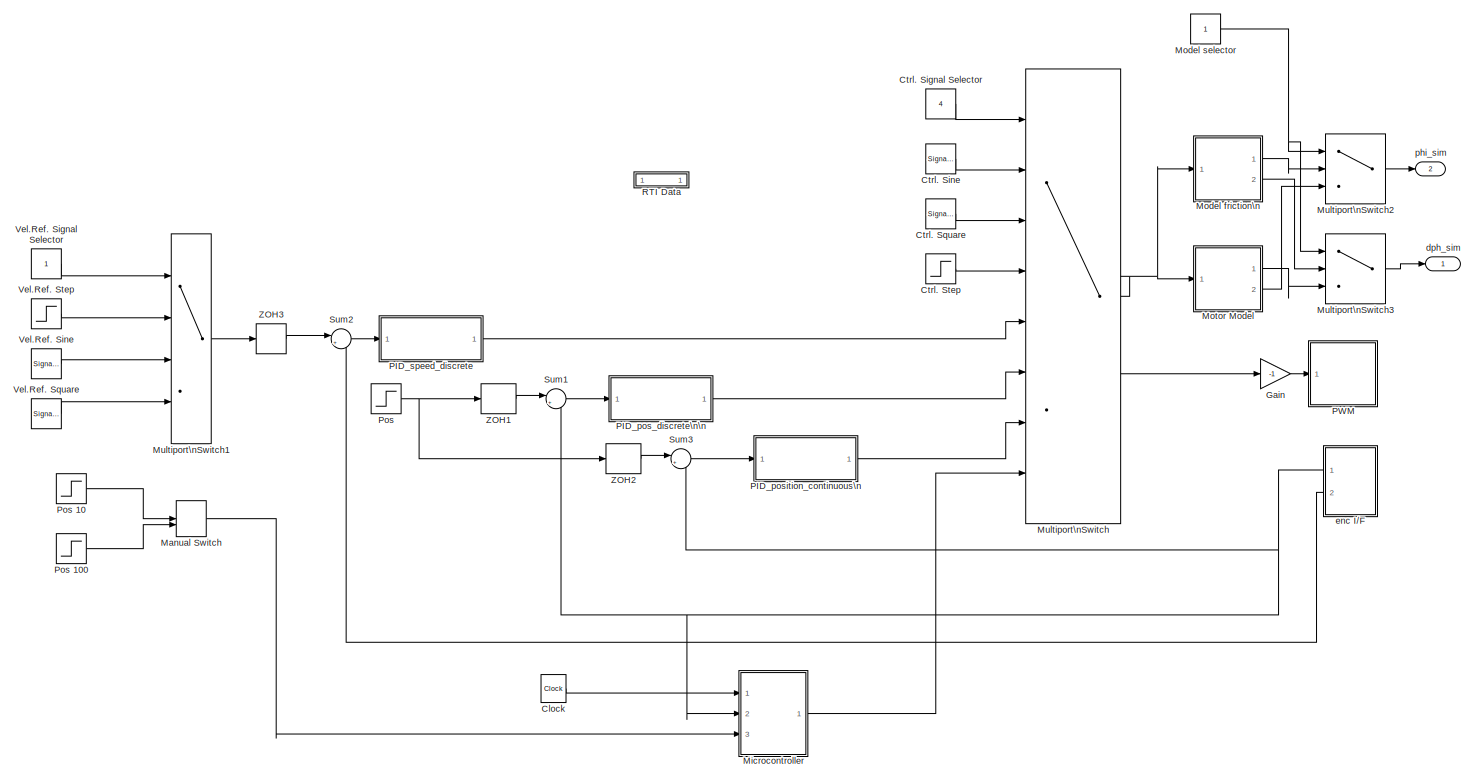
[diagram: root canvas - part 1/1, most of the canvas]
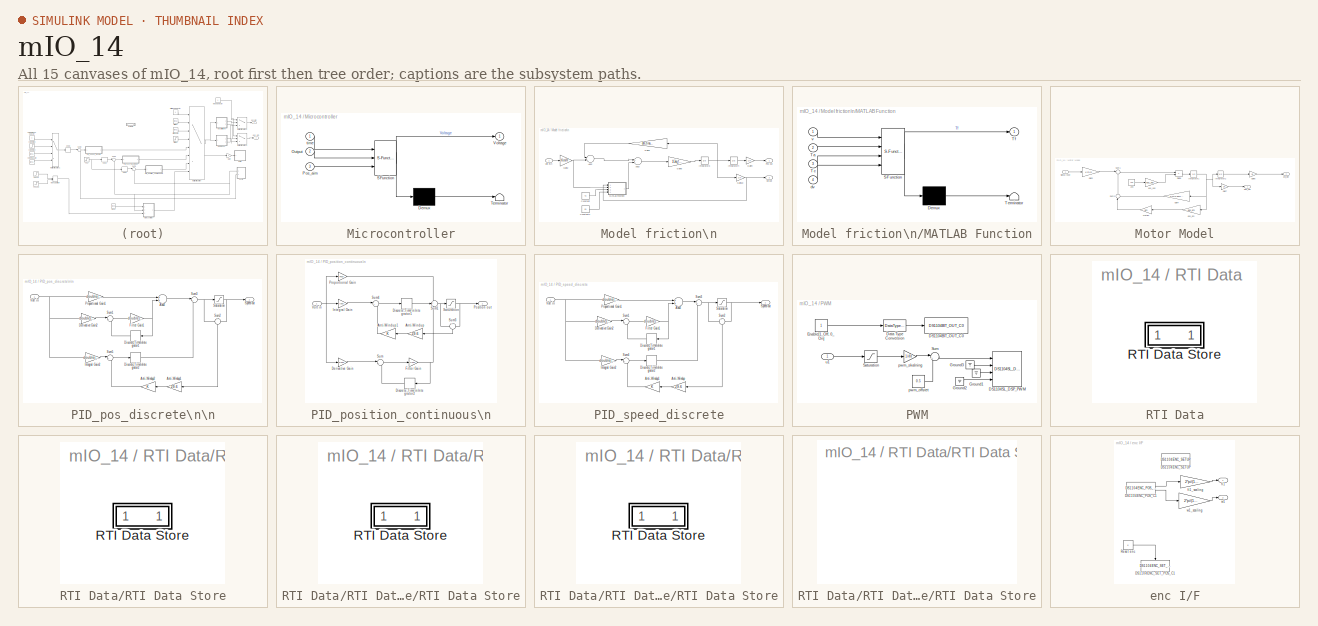
[diagram: thumbnail index - all 15 canvases of the model, root first then tree order]
MODEL mIO_14
KIND model
CONFIG InitFcn = param
CONFIG PostLoadFcn = , if any(exist('dsrtsu_mdlpostloadfcn', 'file') == [2, 3, 6]), try dsrtsu_mdlpostloadfcn('Execute', bdroot); catch fprintf('Error in PostLoadFcn (dsrtsu_mdlpostloadfcn) for model \"%s\":\\n %s\\n', bdroot, lasterr); end, end, \n
BLOCK [Clock] Clock
  Decimation = 1
  DisplayTime = on
  SID = 780
BLOCK [Constant] Ctrl. Signal Selector
  SID = 486
  Value = 4
BLOCK [SignalGenerator] Ctrl. Sine
  Amplitude = 24
  Frequency = 2*pi*2/10
  Ports = [0, 1]
  SID = 487
  Units = rad/sec
BLOCK [SignalGenerator] Ctrl. Square
  Amplitude = 24
  Frequency = 2*pi*2/10
  Ports = [0, 1]
  SID = 488
  Units = rad/sec
  WaveForm = square
BLOCK [Step] Ctrl. Step
  After = 24
  SID = 489
  SampleTime = 0
  Time = 0
BLOCK [Gain] Gain
  Gain = -1
  OutDataTypeStr = Inherit: Inherit via internal rule
  ParamDataTypeStr = Inherit: Inherit via internal rule
  SID = 404
  SaturateOnIntegerOverflow = off
BLOCK [ManualSwitch] Manual Switch
  SID = 777
BLOCK [SubSystem] Microcontroller
  ErrorFcn = Stateflow.Translate.translate
  PermitHierarchicalResolution = ParametersOnly
  Ports = [3, 1]
  RequestExecContextInheritance = off
  SFBlockType = MATLAB Function
  SID = 761
  SystemSampleTime = Ts
  TreatAsAtomicUnit = on
  Variant = off
BLOCK [Demux] Microcontroller/ Demux 
  Outputs = 1
  Ports = [1, 1]
  SID = 761::27
BLOCK [S-Function] Microcontroller/ SFunction 
  EnableBusSupport = on
  FunctionName = sf_sfun
  PortCounts = [3 2]
  Ports = [3, 2]
  SFunctionDeploymentMode = off
  SID = 761::26
  Tag = Stateflow S-Function mIO_14 1
BLOCK [Terminator] Microcontroller/ Terminator 
  SID = 761::28
BLOCK [Inport] Microcontroller/Output
  IconDisplay = Port number
  Port = 2
  SID = 761::1
BLOCK [Inport] Microcontroller/Pos_aim
  IconDisplay = Port number
  Port = 3
  SID = 761::19
BLOCK [Outport] Microcontroller/Voltage
  IconDisplay = Port number
  SID = 761::5
BLOCK [Inport] Microcontroller/time
  IconDisplay = Port number
  SID = 761::29
BLOCK [SubSystem] Model friction\n
  Ports = [1, 2]
  RequestExecContextInheritance = off
  SID = 716
  Variant = off
BLOCK [Sum] Model friction\n/Add2
  InputSameDT = off
  Inputs = -+
  OutDataTypeStr = Inherit: Inherit via internal rule
  Ports = [2, 1]
  SID = 718
  SaturateOnIntegerOverflow = off
BLOCK [Sum] Model friction\n/Add3
  InputSameDT = off
  Inputs = +-
  OutDataTypeStr = Inherit: Inherit via internal rule
  Ports = [2, 1]
  SID = 719
  SaturateOnIntegerOverflow = off
BLOCK [Constant] Model friction\n/Constant
  SID = 748
  Value = Tc
BLOCK [Constant] Model friction\n/Constant1
  SID = 749
  Value = dv
BLOCK [Gain] Model friction\n/Gain10
  Gain = 1/n
  OutDataTypeStr = Inherit: Inherit via internal rule
  ParamDataTypeStr = Inherit: Inherit via internal rule
  SID = 720
  SaturateOnIntegerOverflow = off
BLOCK [Gain] Model friction\n/Gain2
  Gain = Km/R
  OutDataTypeStr = Inherit: Inherit via internal rule
  ParamDataTypeStr = Inherit: Inherit via internal rule
  SID = 721
  SaturateOnIntegerOverflow = off
BLOCK [Gain] Model friction\n/Gain3
  Gain = dm_final+ Km*Kemf/R
  OutDataTypeStr = Inherit: Inherit via internal rule
  ParamDataTypeStr = Inherit: Inherit via internal rule
  SID = 722
  SaturateOnIntegerOverflow = off
BLOCK [Gain] Model friction\n/Gain5
  Gain = 1/Jeq_final
  OutDataTypeStr = Inherit: Inherit via internal rule
  ParamDataTypeStr = Inherit: Inherit via internal rule
  SID = 723
  SaturateOnIntegerOverflow = off
BLOCK [Gain] Model friction\n/Gain9
  Gain = 1/n
  OutDataTypeStr = Inherit: Inherit via internal rule
  ParamDataTypeStr = Inherit: Inherit via internal rule
  SID = 724
  SaturateOnIntegerOverflow = off
BLOCK [Integrator] Model friction\n/Integrator3
  Ports = [1, 1]
  SID = 725
BLOCK [Integrator] Model friction\n/Integrator4
  Ports = [1, 1]
  SID = 726
BLOCK [SubSystem] Model friction\n/MATLAB Function
  ErrorFcn = Stateflow.Translate.translate
  PermitHierarchicalResolution = ParametersOnly
  Ports = [4, 1]
  RequestExecContextInheritance = off
  SFBlockType = MATLAB Function
  SID = 727
  TreatAsAtomicUnit = on
  Variant = off
BLOCK [Demux] Model friction\n/MATLAB Function/ Demux 
  Outputs = 1
  Ports = [1, 1]
  SID = 727::23
BLOCK [S-Function] Model friction\n/MATLAB Function/ SFunction 
  EnableBusSupport = off
  FunctionName = sf_sfun
  PortCounts = [4 2]
  Ports = [4, 2]
  SFunctionDeploymentMode = off
  SID = 727::22
  Tag = Stateflow S-Function mIO_14 3
BLOCK [Terminator] Model friction\n/MATLAB Function/ Terminator 
  SID = 727::24
BLOCK [Inport] Model friction\n/MATLAB Function/Ta
  IconDisplay = Port number
  Port = 2
  SID = 727::19
BLOCK [Inport] Model friction\n/MATLAB Function/Tc
  IconDisplay = Port number
  Port = 3
  SID = 727::20
BLOCK [Outport] Model friction\n/MATLAB Function/Tf
  IconDisplay = Port number
  SID = 727::5
BLOCK [Inport] Model friction\n/MATLAB Function/dv
  IconDisplay = Port number
  Port = 4
  SID = 727::21
BLOCK [Inport] Model friction\n/MATLAB Function/v
  IconDisplay = Port number
  SID = 727::1
BLOCK [Outport] Model friction\n/Pos out
  IconDisplay = Port number
  SID = 728
BLOCK [Outport] Model friction\n/Vel out
  IconDisplay = Port number
  Port = 2
  SID = 733
BLOCK [Inport] Model friction\n/Volt in\n
  IconDisplay = Port number
  SID = 717
BLOCK [Constant] Model selector
  SID = 756
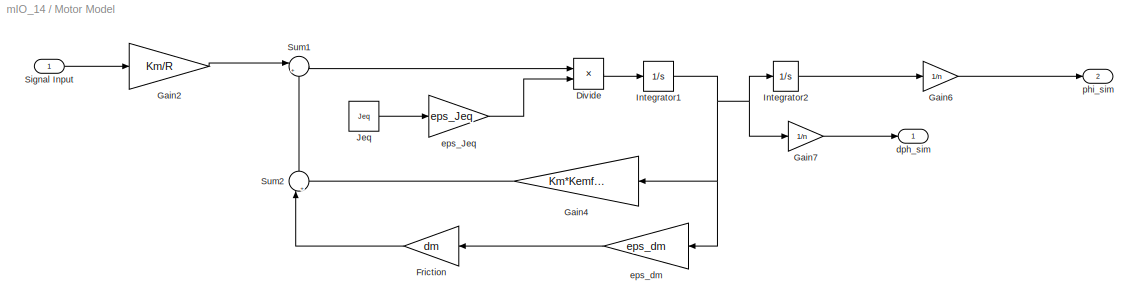
BLOCK [SubSystem] Motor Model
  Ports = [1, 2]
  RequestExecContextInheritance = off
  SID = 405
  Variant = off
BLOCK [Product] Motor Model/Divide
  InputSameDT = off
  Inputs = */
  OutDataTypeStr = Inherit: Inherit via internal rule
  Ports = [2, 1]
  RndMeth = Floor
  SID = 407
  SaturateOnIntegerOverflow = off
BLOCK [Gain] Motor Model/Friction
  Gain = dm
  OutDataTypeStr = Inherit: Inherit via internal rule
  ParamDataTypeStr = Inherit: Inherit via internal rule
  SID = 408
  SaturateOnIntegerOverflow = off
BLOCK [Gain] Motor Model/Gain2
  Gain = Km/R
  OutDataTypeStr = Inherit: Inherit via internal rule
  ParamDataTypeStr = Inherit: Inherit via internal rule
  SID = 409
  SaturateOnIntegerOverflow = off
BLOCK [Gain] Motor Model/Gain4
  Gain = Km*Kemf/(R)
  OutDataTypeStr = Inherit: Inherit via internal rule
  ParamDataTypeStr = Inherit: Inherit via internal rule
  SID = 410
  SaturateOnIntegerOverflow = off
BLOCK [Gain] Motor Model/Gain6
  Gain = 1/n
  OutDataTypeStr = Inherit: Inherit via internal rule
  ParamDataTypeStr = Inherit: Inherit via internal rule
  SID = 411
  SaturateOnIntegerOverflow = off
BLOCK [Gain] Motor Model/Gain7
  Gain = 1/n
  OutDataTypeStr = Inherit: Inherit via internal rule
  ParamDataTypeStr = Inherit: Inherit via internal rule
  SID = 412
  SaturateOnIntegerOverflow = off
BLOCK [Integrator] Motor Model/Integrator1
  Ports = [1, 1]
  SID = 413
BLOCK [Integrator] Motor Model/Integrator2
  Ports = [1, 1]
  SID = 414
BLOCK [Constant] Motor Model/Jeq
  SID = 415
  Value = Jeq
BLOCK [Inport] Motor Model/Signal Input
  IconDisplay = Port number
  SID = 406
BLOCK [Sum] Motor Model/Sum1
  IconShape = round
  InputSameDT = off
  Inputs = |+-
  OutDataTypeStr = Inherit: Inherit via internal rule
  Ports = [2, 1]
  SID = 416
  SaturateOnIntegerOverflow = off
BLOCK [Sum] Motor Model/Sum2
  IconShape = round
  InputSameDT = off
  Inputs = |++
  OutDataTypeStr = Inherit: Inherit via internal rule
  Ports = [2, 1]
  SID = 417
  SaturateOnIntegerOverflow = off
BLOCK [Outport] Motor Model/dph_sim
  IconDisplay = Port number
  SID = 420
BLOCK [Gain] Motor Model/eps_Jeq
  Gain = eps_Jeq
  OutDataTypeStr = Inherit: Inherit via internal rule
  ParamDataTypeStr = Inherit: Inherit via internal rule
  SID = 418
  SaturateOnIntegerOverflow = off
BLOCK [Gain] Motor Model/eps_dm
  Gain = eps_dm
  OutDataTypeStr = Inherit: Inherit via internal rule
  ParamDataTypeStr = Inherit: Inherit via internal rule
  SID = 419
  SaturateOnIntegerOverflow = off
BLOCK [Outport] Motor Model/phi_sim
  IconDisplay = Port number
  Port = 2
  SID = 421
BLOCK [MultiPortSwitch] Multiport\nSwitch
  InputSameDT = off
  Inputs = 7
  Ports = [8, 1]
  SID = 422
  SaturateOnIntegerOverflow = off
BLOCK [MultiPortSwitch] Multiport\nSwitch1
  InputSameDT = off
  Ports = [4, 1]
  SID = 522
  SaturateOnIntegerOverflow = off
BLOCK [MultiPortSwitch] Multiport\nSwitch2
  InputSameDT = off
  Inputs = 2
  Ports = [3, 1]
  SID = 754
  SaturateOnIntegerOverflow = off
BLOCK [MultiPortSwitch] Multiport\nSwitch3
  InputSameDT = off
  Inputs = 2
  Ports = [3, 1]
  SID = 755
  SaturateOnIntegerOverflow = off
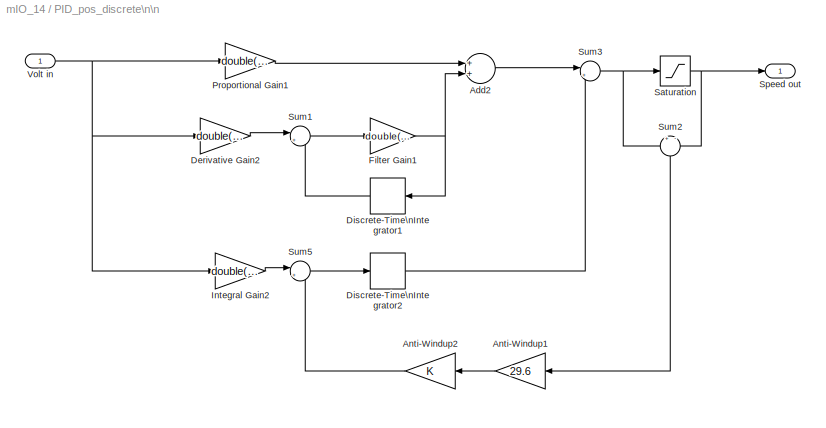
BLOCK [SubSystem] PID_pos_discrete\n\n
  Ports = [1, 1]
  RequestExecContextInheritance = off
  SID = 423
  Variant = off
BLOCK [Sum] PID_pos_discrete\n\n/Add2
  InputSameDT = off
  OutDataTypeStr = Inherit: Inherit via internal rule
  Ports = [2, 1]
  SID = 425
  SaturateOnIntegerOverflow = off
BLOCK [Gain] PID_pos_discrete\n\n/Anti-Windup1
  Gain = 29.6
  OutDataTypeStr = Inherit: Inherit via internal rule
  ParamDataTypeStr = Inherit: Inherit via internal rule
  SID = 614
  SaturateOnIntegerOverflow = off
BLOCK [Gain] PID_pos_discrete\n\n/Anti-Windup2
  OutDataTypeStr = Inherit: Inherit via internal rule
  ParamDataTypeStr = Inherit: Inherit via internal rule
  SID = 615
  SaturateOnIntegerOverflow = off
BLOCK [Gain] PID_pos_discrete\n\n/Derivative Gain2
  Gain = double(Dpos_d)
  OutDataTypeStr = Inherit: Inherit via internal rule
  ParamDataTypeStr = Inherit: Inherit via internal rule
  SID = 426
  SaturateOnIntegerOverflow = off
BLOCK [DiscreteIntegrator] PID_pos_discrete\n\n/Discrete-Time\nIntegrator1
  ICPrevOutput = DiscIntNeverNeededParam
  ICPrevScaledInput = DiscIntNeverNeededParam
  InitialConditionSetting = State (most efficient)
  Ports = [1, 1]
  SID = 427
  SampleTime = Ts
BLOCK [DiscreteIntegrator] PID_pos_discrete\n\n/Discrete-Time\nIntegrator2
  ICPrevOutput = DiscIntNeverNeededParam
  ICPrevScaledInput = DiscIntNeverNeededParam
  InitialConditionSetting = State (most efficient)
  Ports = [1, 1]
  SID = 428
  SampleTime = Ts
BLOCK [Gain] PID_pos_discrete\n\n/Filter Gain1
  Gain = double(Npos_d)
  OutDataTypeStr = Inherit: Inherit via internal rule
  ParamDataTypeStr = Inherit: Inherit via internal rule
  SID = 429
  SaturateOnIntegerOverflow = off
BLOCK [Gain] PID_pos_discrete\n\n/Integral Gain2
  Gain = double(Ipos_d)
  OutDataTypeStr = Inherit: Inherit via internal rule
  ParamDataTypeStr = Inherit: Inherit via internal rule
  SID = 430
  SaturateOnIntegerOverflow = off
BLOCK [Gain] PID_pos_discrete\n\n/Proportional Gain1
  Gain = double(Ppos_d)
  OutDataTypeStr = Inherit: Inherit via internal rule
  ParamDataTypeStr = Inherit: Inherit via internal rule
  SID = 431
  SaturateOnIntegerOverflow = off
BLOCK [Saturate] PID_pos_discrete\n\n/Saturation
  InputPortMap = u0
  LowerLimit = -24
  Ports = [1, 1]
  SID = 432
  UpperLimit = 24
BLOCK [Outport] PID_pos_discrete\n\n/Speed out
  IconDisplay = Port number
  SID = 435
BLOCK [Sum] PID_pos_discrete\n\n/Sum1
  IconShape = round
  InputSameDT = off
  Inputs = |+-
  OutDataTypeStr = Inherit: Inherit via internal rule
  Ports = [2, 1]
  SID = 433
  SaturateOnIntegerOverflow = off
BLOCK [Sum] PID_pos_discrete\n\n/Sum2
  IconShape = round
  InputSameDT = off
  Inputs = +|-
  OutDataTypeStr = Inherit: Inherit via internal rule
  Ports = [2, 1]
  SID = 619
  SaturateOnIntegerOverflow = off
BLOCK [Sum] PID_pos_discrete\n\n/Sum3
  IconShape = round
  InputSameDT = off
  Inputs = |++
  OutDataTypeStr = Inherit: Inherit via internal rule
  Ports = [2, 1]
  SID = 434
  SaturateOnIntegerOverflow = off
BLOCK [Sum] PID_pos_discrete\n\n/Sum5
  IconShape = round
  InputSameDT = off
  Inputs = |+-
  OutDataTypeStr = Inherit: Inherit via internal rule
  Ports = [2, 1]
  SID = 621
  SaturateOnIntegerOverflow = off
BLOCK [Inport] PID_pos_discrete\n\n/Volt in
  IconDisplay = Port number
  SID = 424
BLOCK [SubSystem] PID_position_continuous\n
  Ports = [1, 1]
  RequestExecContextInheritance = off
  SID = 436
  Variant = off
BLOCK [Gain] PID_position_continuous\n/Anti-Windup
  Gain = 29.6
  OutDataTypeStr = Inherit: Inherit via internal rule
  ParamDataTypeStr = Inherit: Inherit via internal rule
  SID = 626
  SaturateOnIntegerOverflow = off
BLOCK [Gain] PID_position_continuous\n/Anti-Windup1
  OutDataTypeStr = Inherit: Inherit via internal rule
  ParamDataTypeStr = Inherit: Inherit via internal rule
  SID = 627
  SaturateOnIntegerOverflow = off
BLOCK [Gain] PID_position_continuous\n/Derivative Gain
  Gain = Dpos
  OutDataTypeStr = Inherit: Inherit via internal rule
  ParamDataTypeStr = Inherit: Inherit via internal rule
  SID = 438
  SaturateOnIntegerOverflow = off
BLOCK [DiscreteIntegrator] PID_position_continuous\n/Discrete-Time\nIntegrator1
  ICPrevOutput = DiscIntNeverNeededParam
  ICPrevScaledInput = DiscIntNeverNeededParam
  InitialConditionSetting = State (most efficient)
  Ports = [1, 1]
  SID = 704
  SampleTime = Ts
BLOCK [DiscreteIntegrator] PID_position_continuous\n/Discrete-Time\nIntegrator2
  ICPrevOutput = DiscIntNeverNeededParam
  ICPrevScaledInput = DiscIntNeverNeededParam
  InitialConditionSetting = State (most efficient)
  Ports = [1, 1]
  SID = 705
  SampleTime = Ts
BLOCK [Gain] PID_position_continuous\n/Filter Gain
  Gain = Npos
  OutDataTypeStr = Inherit: Inherit via internal rule
  ParamDataTypeStr = Inherit: Inherit via internal rule
  SID = 439
  SaturateOnIntegerOverflow = off
BLOCK [Gain] PID_position_continuous\n/Integral Gain
  Gain = Ipos
  OutDataTypeStr = Inherit: Inherit via internal rule
  ParamDataTypeStr = Inherit: Inherit via internal rule
  SID = 440
  SaturateOnIntegerOverflow = off
BLOCK [Outport] PID_position_continuous\n/Position out
  IconDisplay = Port number
  SID = 447
BLOCK [Gain] PID_position_continuous\n/Proportional Gain
  Gain = Ppos
  OutDataTypeStr = Inherit: Inherit via internal rule
  ParamDataTypeStr = Inherit: Inherit via internal rule
  SID = 443
  SaturateOnIntegerOverflow = off
BLOCK [Saturate] PID_position_continuous\n/Saturation
  InputPortMap = u0
  LowerLimit = -24
  Ports = [1, 1]
  SID = 444
  UpperLimit = 24
BLOCK [Sum] PID_position_continuous\n/Sum
  IconShape = round
  InputSameDT = off
  Inputs = |+-
  OutDataTypeStr = Inherit: Inherit via internal rule
  Ports = [2, 1]
  SID = 445
  SaturateOnIntegerOverflow = off
BLOCK [Sum] PID_position_continuous\n/Sum1
  IconShape = round
  InputSameDT = off
  Inputs = +++
  OutDataTypeStr = Inherit: Inherit via internal rule
  Ports = [3, 1]
  SID = 446
  SaturateOnIntegerOverflow = off
BLOCK [Sum] PID_position_continuous\n/Sum3
  IconShape = round
  InputSameDT = off
  Inputs = +|-
  OutDataTypeStr = Inherit: Inherit via internal rule
  Ports = [2, 1]
  SID = 634
  SaturateOnIntegerOverflow = off
BLOCK [Sum] PID_position_continuous\n/Sum4
  IconShape = round
  InputSameDT = off
  Inputs = |+-
  OutDataTypeStr = Inherit: Inherit via internal rule
  Ports = [2, 1]
  SID = 635
  SaturateOnIntegerOverflow = off
BLOCK [Inport] PID_position_continuous\n/Volt in
  IconDisplay = Port number
  SID = 437
BLOCK [SubSystem] PID_speed_discrete
  Ports = [1, 1]
  RequestExecContextInheritance = off
  SID = 448
  Variant = off
BLOCK [Sum] PID_speed_discrete/Add2
  InputSameDT = off
  OutDataTypeStr = Inherit: Inherit via internal rule
  Ports = [2, 1]
  SID = 450
  SaturateOnIntegerOverflow = off
BLOCK [Gain] PID_speed_discrete/Anti-Windup
  Gain = 29.6
  OutDataTypeStr = Inherit: Inherit via internal rule
  ParamDataTypeStr = Inherit: Inherit via internal rule
  SID = 519
  SaturateOnIntegerOverflow = off
BLOCK [Gain] PID_speed_discrete/Anti-Windup1
  OutDataTypeStr = Inherit: Inherit via internal rule
  ParamDataTypeStr = Inherit: Inherit via internal rule
  SID = 577
  SaturateOnIntegerOverflow = off
BLOCK [Gain] PID_speed_discrete/Derivative Gain2
  Gain = double(Dsp_d)
  OutDataTypeStr = Inherit: Inherit via internal rule
  ParamDataTypeStr = Inherit: Inherit via internal rule
  SID = 451
  SaturateOnIntegerOverflow = off
BLOCK [DiscreteIntegrator] PID_speed_discrete/Discrete-Time\nIntegrator1
  ICPrevOutput = DiscIntNeverNeededParam
  ICPrevScaledInput = DiscIntNeverNeededParam
  InitialConditionSetting = State (most efficient)
  Ports = [1, 1]
  SID = 452
  SampleTime = -1
BLOCK [DiscreteIntegrator] PID_speed_discrete/Discrete-Time\nIntegrator2
  ICPrevOutput = DiscIntNeverNeededParam
  ICPrevScaledInput = DiscIntNeverNeededParam
  InitialConditionSetting = State (most efficient)
  Ports = [1, 1]
  SID = 453
  SampleTime = -1
BLOCK [Gain] PID_speed_discrete/Filter Gain1
  Gain = double(Nsp_d)
  OutDataTypeStr = Inherit: Inherit via internal rule
  ParamDataTypeStr = Inherit: Inherit via internal rule
  SID = 454
  SaturateOnIntegerOverflow = off
BLOCK [Gain] PID_speed_discrete/Integral Gain2
  Gain = double(Isp_d)
  OutDataTypeStr = Inherit: Inherit via internal rule
  ParamDataTypeStr = Inherit: Inherit via internal rule
  SID = 455
  SaturateOnIntegerOverflow = off
BLOCK [Gain] PID_speed_discrete/Proportional Gain1
  Gain = double(Psp_d)
  OutDataTypeStr = Inherit: Inherit via internal rule
  ParamDataTypeStr = Inherit: Inherit via internal rule
  SID = 456
  SaturateOnIntegerOverflow = off
BLOCK [Saturate] PID_speed_discrete/Saturation
  InputPortMap = u0
  LowerLimit = -24
  Ports = [1, 1]
  SID = 457
  UpperLimit = 24
BLOCK [Outport] PID_speed_discrete/Speed out
  IconDisplay = Port number
  SID = 460
BLOCK [Sum] PID_speed_discrete/Sum1
  IconShape = round
  InputSameDT = off
  Inputs = |+-
  OutDataTypeStr = Inherit: Inherit via internal rule
  Ports = [2, 1]
  SID = 458
  SaturateOnIntegerOverflow = off
BLOCK [Sum] PID_speed_discrete/Sum2
  IconShape = round
  InputSameDT = off
  Inputs = +|-
  OutDataTypeStr = Inherit: Inherit via internal rule
  Ports = [2, 1]
  SID = 517
  SaturateOnIntegerOverflow = off
BLOCK [Sum] PID_speed_discrete/Sum3
  IconShape = round
  InputSameDT = off
  Inputs = |++
  OutDataTypeStr = Inherit: Inherit via internal rule
  Ports = [2, 1]
  SID = 459
  SaturateOnIntegerOverflow = off
BLOCK [Sum] PID_speed_discrete/Sum4
  IconShape = round
  InputSameDT = off
  Inputs = |+-
  OutDataTypeStr = Inherit: Inherit via internal rule
  Ports = [2, 1]
  SID = 518
  SaturateOnIntegerOverflow = off
BLOCK [Inport] PID_speed_discrete/Volt in
  IconDisplay = Port number
  SID = 449
BLOCK [SubSystem] PWM
  Ports = [1]
  RequestExecContextInheritance = off
  SID = 461
  Variant = off
BLOCK [Reference] PWM/DS1104BIT_OUT_C0  REF=rtilib1104/DS1104 MASTER PPC/DS1104BIT_OUT_C0
  ChannelNo = 0
  DSProperties = struct('RTI',struct('Version',uint32(1),'BlockType',struct('isSLSource',uint8(0),'isSLSink',uint8(1),'isHWSource',uint8(0),'isHWSink',uint8(1),'isSetup',uint8(0),'isInline',uint8(1),'isNonInline',uint8(0),'isInterrupt',uint8(0),'isChannelwise',uint8(1)),'IOBoardType','DS1104MASTER','UnitType','BIT','Identifier','BITOUTCH','DialogType','ML','BlockSet','NONE','SlaveProcessor','NONE'))
  DialogFcn = gui1104bit_out
  InitValue = 1
  Ports = [1]
  Reserved = []
  Reserved1 = []
  Reserved2 = []
  Reserved3 = []
  SID = 463
  SourceBlock = rtilib1104/DS1104 MASTER PPC/DS1104BIT_OUT_C0
  SourceType = RTI
  TermMode = 0
  TermValue = 0
  UnitName = {'DS1104BIT_OUT_C'}
  UnitValues = { 0 }
BLOCK [Reference] PWM/DS1104SL_DSP_PWM  REF=rtilib1104/DS1104 SLAVE DSP/DS1104SL_DSP_PWM
  BoardType = []
  DSProperties = struct('RTI',struct('Version',uint32(2),'BlockType',struct('isSLSource',uint8(0),'isSLSink',uint8(1),'isHWSource',uint8(0),'isHWSink',uint8(1),'isSetup',uint8(0),'isInline',uint8(1),'isNonInline',uint8(0),'isInterrupt',uint8(0),'isChannelwise',uint8(0)),'IOBoardType','DS1104SLAVE','UnitType','PWM','Identifier','PWM','DialogType','ML','BlockSet','NONE','SlaveProcessor','F240'))
  DialogFcn = gui1104sl_dsp_pwm
  Frequency = 20000
  InitValue = [0.5 0.5 0.5 0.5]
  Parameters = []
  Polarity = [1 1 1 1]
  Ports = [4]
  PwmMode = 1
  RTIBlockInterface = struct('InputPortsActive',[1 1 1 1],'InputPortsWidth',int32([1 1 1 1]),'InputPortsName',{{['PWM Channel 1'],['PWM Channel 2'],['PWM Channel 3'],['PWM Channel 4']}},'IWork',{{{'',uint32(4)}}},'DialogFcn','rti1104slavepwmgui','InitLevel',1,'BlockDisplay',{{'','auto'}},'IconTransparency','on','MultiSFcn',4,'BlockName',struct('Token',{{'DS1104SL_DSP_PWM'}}))
  RTIBlockParaDefault = struct('PWMSymmetryMode',1,'PWMFrequency',100,'PWMPolarityMode',[1 1 1 1 1],'ChannelNo',[1 2 3 4],'SuspendModeInit',[1 1 1 1 1],'TTLModeInit',[2 2 2 2 2],'DutyCycleInitValueCh1',0.5,'DutyCycleInitValueCh2',0.5,'DutyCycleInitValueCh3',0.5,'DutyCycleInitValueCh4',0.5,'DutyCycleInitValueCh5',0.5,'EnablePWMStop',[1 1 1 1 0],'SuspendModeTerm',[1 1 1 1 1],'TTLModeTerm',[2 2 2 2 2],'DutyCycleTermValueCh1...<+145ch>
  RTIBlockParameters = struct('PWMSymmetryMode',{{1,'OFF',[]}},'PWMFrequency',{{'50000','OFF',[]}},'PWMPolarityMode',{{[1 1 1 1 1],'OFF',[]}},'ChannelNo',{{[1 2 3 4],'OFF',[]}},'SuspendModeInit',{{[0 0 0 0 1],'OFF',[]}},'TTLModeInit',{{[2 2 2 2 2],'OFF',[]}},'DutyCycleInitValueCh1',{{'0.5','OFF',[]}},'DutyCycleInitValueCh2',{{'0.5','OFF',[]}},'DutyCycleInitValueCh3',{{'0.5','OFF',[]}},'DutyCycleInitValueCh4',{{'0.5','OF...<+429ch>
  RTISFcnParameters = struct('PWMSymmetryMode','double','PWMFrequency','double','PWMPolarityMode','double','ChannelNo','double','SuspendModeInit','double','TTLModeInit','double','DutyCycleInitValueCh1','double','DutyCycleInitValueCh2','double','DutyCycleInitValueCh3','double','DutyCycleInitValueCh4','double','EnablePWMStop','double','SuspendModeTerm','double','TTLModeTerm','double','DutyCycleTermValueCh1','double','Dut...<+116ch>
  Reserved1 = []
  Reserved2 = []
  Reserved3 = []
  Reserved4 = []
  Revision = []
  SID = 464
  SourceBlock = rtilib1104/DS1104 SLAVE DSP/DS1104SL_DSP_PWM
  SourceType = RTI
  TDef = []
  TermMode = [0 0 0 0]
  TermValue = [0.5 0.5 0.5 0.5]
  UnitName = {'DS1104SL_DSP_PWM'}
  UnitValues = {[]}
BLOCK [DataTypeConversion] PWM/Data Type Conversion
  OutDataTypeStr = boolean
  SID = 465
BLOCK [Constant] PWM/Enable[1_Off, 0_On]
  SID = 466
BLOCK [Ground] PWM/Ground1
  SID = 467
BLOCK [Ground] PWM/Ground2
  SID = 468
BLOCK [Ground] PWM/Ground3
  SID = 469
BLOCK [Saturate] PWM/Saturation
  InputPortMap = u0
  LowerLimit = -24
  Ports = [1, 1]
  SID = 470
  UpperLimit = 24
BLOCK [Sum] PWM/Sum
  IconShape = round
  InputSameDT = off
  Inputs = |++
  OutDataTypeStr = Inherit: Inherit via internal rule
  Ports = [2, 1]
  SID = 471
BLOCK [Constant] PWM/pwm_offstet
  SID = 472
  Value = 0.5
BLOCK [Gain] PWM/pwm_skalning
  Gain = 1/48
  SID = 473
BLOCK [Inport] PWM/u1
  IconDisplay = Port number
  SID = 462
BLOCK [Step] Pos
  SID = 474
  SampleTime = 0
  Time = 0
BLOCK [Step] Pos 10
  After = 10
  SID = 778
  SampleTime = 0
  Time = 0
BLOCK [Step] Pos 100
  After = 100
  SID = 779
  SampleTime = 0
  Time = 0
BLOCK [SubSystem] RTI Data
  CopyFcn = if exist('rtidc'), try,  rtidc('DataHostBlockClbCopy', gcbh); catch, disp(['Warning: ''CopyFcn'' for RTI Data block failed: ' lasterr]); end, end,
  DeleteFcn = if exist('rtidc'), try,  rtidc('DataHostBlockClbDelete', gcbh); catch, disp(['Warning: ''DeleteFcn'' for RTI Data block failed: ' lasterr]); end, end,
  LoadFcn = if exist('rtidc'), try,  rtidc('DataHostBlockClbLoad', gcbh); catch, disp(['Warning: ''LoadFcn'' for RTI Data block failed: ' lasterr]); end, end,
  ModelCloseFcn = if exist('rtidc'), try,  rtidc('DataHostBlockClbModelClose', gcbh); catch, disp(['Warning: ''ModelCloseFcn'' for RTI Data block failed: ' lasterr]); end, end,
  NameChangeFcn = if exist('rtidc'), try,  rtidc('DataHostBlockClbNameChange', gcbh); catch, disp(['Warning: ''NameChangeFcn'' for RTI Data block failed: ' lasterr]); end, end,
  Ports = []
  PostSaveFcn = if exist('rtidc'), try,  rtidc('DataHostBlockClbPostSave', gcbh); catch, disp(['Warning: ''PostSaveFcn'' for RTI Data block failed: ' lasterr]); end, end,
  PreSaveFcn = if exist('rtidc'), try,  rtidc('DataHostBlockClbPreSave', gcbh); catch, disp(['Warning: ''PreSaveFcn'' for RTI Data block failed: ' lasterr]); end, end,
  RequestExecContextInheritance = off
  SID = 480
  Tag = struct('RTIDataServer',struct('RTIDataServerVs','2','RTIModelDescription','struct(''main'',''mIO'',''sub'','''',''isMp'',0)'))
  Variant = off
BLOCK [SubSystem] RTI Data/RTI Data Store
  Ports = []
  RequestExecContextInheritance = off
  SID = 757
  Tag = struct('public',struct('sub',struct('name',{{'mIO'}},'data',{{struct('TH',struct('thTaskInfo',struct('taskType',{'TIMER','HWINT','TMRINT','SWINT','GLINT'},'tasksNumOf',{1,0,0,0,0},'srcIds',{{'TIMERA'},{},{},{},{}},'taskNames',{{['Timer Task 1']},{},{},{},{}})),'th_tc',struct('dataType','TASK','taskGroupId','','taskGroupList',{{}},'taskSchedulingPolicy','FCFS','taskType','TIMER','blkh',-1,'srcId','...<+737ch>
  Variant = off
BLOCK [SubSystem] RTI Data/RTI Data Store/RTI Data Store
  Ports = []
  RequestExecContextInheritance = off
  SID = 758
  Variant = off
BLOCK [SubSystem] RTI Data/RTI Data Store/RTI Data Store/RTI Data Store
  Ports = []
  RequestExecContextInheritance = off
  SID = 759
  Variant = off
BLOCK [SubSystem] RTI Data/RTI Data Store/RTI Data Store/RTI Data Store/RTI Data Store
  Ports = []
  RequestExecContextInheritance = off
  SID = 760
  Variant = off
BLOCK [Sum] Sum1
  IconShape = round
  InputSameDT = off
  Inputs = |+-
  OutDataTypeStr = Inherit: Inherit via internal rule
  Ports = [2, 1]
  SID = 490
  SaturateOnIntegerOverflow = off
BLOCK [Sum] Sum2
  IconShape = round
  InputSameDT = off
  Inputs = |+-
  OutDataTypeStr = Inherit: Inherit via internal rule
  Ports = [2, 1]
  SID = 491
  SaturateOnIntegerOverflow = off
BLOCK [Sum] Sum3
  IconShape = round
  InputSameDT = off
  Inputs = |+-
  OutDataTypeStr = Inherit: Inherit via internal rule
  Ports = [2, 1]
  SID = 492
  SaturateOnIntegerOverflow = off
BLOCK [Constant] Vel.Ref. Signal Selector
  SID = 523
BLOCK [SignalGenerator] Vel.Ref. Sine
  Amplitude = 50
  Frequency = 2*pi*2/10
  Ports = [0, 1]
  SID = 525
  Units = rad/sec
BLOCK [SignalGenerator] Vel.Ref. Square
  Amplitude = 50
  Frequency = 2/10
  Ports = [0, 1]
  SID = 534
  Units = rad/sec
  WaveForm = square
BLOCK [Step] Vel.Ref. Step
  After = 50
  SID = 493
  SampleTime = 0
  Time = 0
BLOCK [ZeroOrderHold] ZOH1
  SID = 495
  SampleTime = Ts
BLOCK [ZeroOrderHold] ZOH2
  SID = 496
  SampleTime = Ts
BLOCK [ZeroOrderHold] ZOH3
  SID = 497
  SampleTime = Ts
BLOCK [Outport] dph_sim
  IconDisplay = Port number
  SID = 507
BLOCK [SubSystem] enc I//F
  Ports = [0, 2]
  RequestExecContextInheritance = off
  SID = 498
  Variant = off
BLOCK [Reference] enc I//F/DS1104ENC_POS_C1  REF=rtilib1104/DS1104 MASTER PPC/DS1104ENC_POS_C1
  ChannelNo = 1
  DSProperties = struct('RTI',struct('Version',uint32(1),'BlockType',struct('isSLSource',uint8(1),'isSLSink',uint8(0),'isHWSource',uint8(1),'isHWSink',uint8(0),'isSetup',uint8(0),'isInline',uint8(1),'isNonInline',uint8(0),'isInterrupt',uint8(0),'isChannelwise',uint8(1)),'IOBoardType','DS1104MASTER','UnitType','ENC','Identifier','ENCPOSCH','DialogType','ML','BlockSet','NONE','SlaveProcessor','NONE'))
  DialogFcn = gui1104enc_pos
  Ports = [0, 2]
  PosValue = 0
  Reserved1 = []
  Reserved2 = []
  Reserved3 = []
  Reserved4 = []
  SID = 499
  SourceBlock = rtilib1104/DS1104 MASTER PPC/DS1104ENC_POS_C1
  SourceType = RTI
  UnitName = {'DS1104ENC_POS_C'}
  UnitValues = { 1 }
BLOCK [Reference] enc I//F/DS1104ENC_SETUP  REF=rtilib1104/DS1104 MASTER PPC/DS1104ENC_SETUP
  DSProperties = struct('RTI',struct('Version',uint32(1),'BlockType',struct('isSLSource',uint8(0),'isSLSink',uint8(0),'isHWSource',uint8(0),'isHWSink',uint8(0),'isSetup',uint8(0),'isInline',uint8(1),'isNonInline',uint8(0),'isInterrupt',uint8(0),'isChannelwise',uint8(0)),'IOBoardType','DS1104MASTER','UnitType','ENC','Identifier','ENCSETUP','DialogType','ML','BlockSet','NONE','SlaveProcessor','NONE'))
  DialogFcn = gui1104enc_setup
  Ports = []
  Reserved1 = []
  Reserved2 = []
  Reserved3 = []
  Reserved4 = []
  SID = 500
  SignalType = [1 0]
  SourceBlock = rtilib1104/DS1104 MASTER PPC/DS1104ENC_SETUP
  SourceType = RTI
  UnitName = {'DS1104ENC_SETUP'}
  UnitValues = { [] }
BLOCK [Reference] enc I//F/DS1104ENC_SET_POS_C1  REF=rtilib1104/DS1104 MASTER PPC/DS1104ENC_SET_POS_C1
  ChannelNo = 1
  DSProperties = struct('RTI',struct('Version',uint32(1),'BlockType',struct('isSLSource',uint8(0),'isSLSink',uint8(1),'isHWSource',uint8(0),'isHWSink',uint8(1),'isSetup',uint8(0),'isInline',uint8(1),'isNonInline',uint8(0),'isInterrupt',uint8(0),'isChannelwise',uint8(1)),'IOBoardType','DS1104MASTER','UnitType','ENC','Identifier','ENCRESET','DialogType','ML','BlockSet','NONE','SlaveProcessor','NONE'))
  DialogFcn = gui1104enc_set_pos
  Ports = [0, 0, 0, 1]
  PosValue = 0
  Reserved1 = []
  Reserved2 = []
  Reserved3 = []
  Reserved4 = []
  SID = 501
  SourceBlock = rtilib1104/DS1104 MASTER PPC/DS1104ENC_SET_POS_C1
  SourceType = RTI
  UnitName = {'DS1104ENC_SET_POS_C'}
  UnitValues = { 1 }
BLOCK [Constant] enc I//F/Reset enc
  SID = 502
  Value = 0
BLOCK [Outport] enc I//F/fi1
  IconDisplay = Port number
  SID = 505
BLOCK [Gain] enc I//F/fi1_scaling
  Gain = 2*pi/(1000)
  SID = 503
BLOCK [Outport] enc I//F/w1
  IconDisplay = Port number
  Port = 2
  SID = 506
BLOCK [Gain] enc I//F/w1_scaling
  Gain = 2*pi/(1000)/Ts
  SID = 504
BLOCK [Outport] phi_sim
  IconDisplay = Port number
  Port = 2
  SID = 508
LINE Clock:1 -> Microcontroller:1
LINE Ctrl. Signal Selector:1 -> Multiport\nSwitch:1
LINE Ctrl. Sine:1 -> Multiport\nSwitch:2
LINE Ctrl. Square:1 -> Multiport\nSwitch:3
LINE Ctrl. Step:1 -> Multiport\nSwitch:4
LINE Gain:1 -> PWM:1
LINE Manual Switch:1 -> Microcontroller:3
LINE Microcontroller/ Demux :1 -> Microcontroller/ Terminator :1
LINE Microcontroller/ SFunction :1 -> Microcontroller/ Demux :1
LINE Microcontroller/ SFunction :2 -> Microcontroller/Voltage:1
LINE Microcontroller/Output:1 -> Microcontroller/ SFunction :2
LINE Microcontroller/Pos_aim:1 -> Microcontroller/ SFunction :3
LINE Microcontroller/time:1 -> Microcontroller/ SFunction :1
LINE Microcontroller:1 -> Multiport\nSwitch:8
LINE Model friction\n/Add2:1 -> Model friction\n/Add3:1
LINE Model friction\n/Add3:1 -> Model friction\n/Gain5:1
LINE Model friction\n/Constant1:1 -> Model friction\n/MATLAB Function:4
LINE Model friction\n/Constant:1 -> Model friction\n/MATLAB Function:3
NET Model friction\n/Gain10:1 -> Model friction\n/MATLAB Function:1, Model friction\n/Vel out:1
NET Model friction\n/Gain2:1 -> Model friction\n/Add2:2, Model friction\n/MATLAB Function:2
LINE Model friction\n/Gain3:1 -> Model friction\n/Add2:1
LINE Model friction\n/Gain5:1 -> Model friction\n/Integrator3:1
LINE Model friction\n/Gain9:1 -> Model friction\n/Pos out:1
NET Model friction\n/Integrator3:1 -> Model friction\n/Gain10:1, Model friction\n/Gain3:1, Model friction\n/Integrator4:1
LINE Model friction\n/Integrator4:1 -> Model friction\n/Gain9:1
LINE Model friction\n/MATLAB Function/ Demux :1 -> Model friction\n/MATLAB Function/ Terminator :1
LINE Model friction\n/MATLAB Function/ SFunction :1 -> Model friction\n/MATLAB Function/ Demux :1
LINE Model friction\n/MATLAB Function/ SFunction :2 -> Model friction\n/MATLAB Function/Tf:1
LINE Model friction\n/MATLAB Function/Ta:1 -> Model friction\n/MATLAB Function/ SFunction :2
LINE Model friction\n/MATLAB Function/Tc:1 -> Model friction\n/MATLAB Function/ SFunction :3
LINE Model friction\n/MATLAB Function/dv:1 -> Model friction\n/MATLAB Function/ SFunction :4
LINE Model friction\n/MATLAB Function/v:1 -> Model friction\n/MATLAB Function/ SFunction :1
LINE Model friction\n/MATLAB Function:1 -> Model friction\n/Add3:2
LINE Model friction\n/Volt in\n:1 -> Model friction\n/Gain2:1
LINE Model friction\n:1 -> Multiport\nSwitch2:2
LINE Model friction\n:2 -> Multiport\nSwitch3:2
NET Model selector:1 -> Multiport\nSwitch2:1, Multiport\nSwitch3:1
LINE Motor Model/Divide:1 -> Motor Model/Integrator1:1
LINE Motor Model/Friction:1 -> Motor Model/Sum2:1
LINE Motor Model/Gain2:1 -> Motor Model/Sum1:1
LINE Motor Model/Gain4:1 -> Motor Model/Sum2:2
LINE Motor Model/Gain6:1 -> Motor Model/phi_sim:1
LINE Motor Model/Gain7:1 -> Motor Model/dph_sim:1
NET Motor Model/Integrator1:1 -> Motor Model/Gain4:1, Motor Model/Gain7:1, Motor Model/Integrator2:1, Motor Model/eps_dm:1
LINE Motor Model/Integrator2:1 -> Motor Model/Gain6:1
LINE Motor Model/Jeq:1 -> Motor Model/eps_Jeq:1
LINE Motor Model/Signal Input:1 -> Motor Model/Gain2:1
LINE Motor Model/Sum1:1 -> Motor Model/Divide:1
LINE Motor Model/Sum2:1 -> Motor Model/Sum1:2
LINE Motor Model/eps_Jeq:1 -> Motor Model/Divide:2
LINE Motor Model/eps_dm:1 -> Motor Model/Friction:1
LINE Motor Model:1 -> Multiport\nSwitch3:3
LINE Motor Model:2 -> Multiport\nSwitch2:3
LINE Multiport\nSwitch1:1 -> ZOH3:1
LINE Multiport\nSwitch2:1 -> phi_sim:1
LINE Multiport\nSwitch3:1 -> dph_sim:1
NET Multiport\nSwitch:1 -> Gain:1, Model friction\n:1, Motor Model:1
LINE PID_pos_discrete\n\n/Add2:1 -> PID_pos_discrete\n\n/Sum3:1
LINE PID_pos_discrete\n\n/Anti-Windup1:1 -> PID_pos_discrete\n\n/Anti-Windup2:1
LINE PID_pos_discrete\n\n/Anti-Windup2:1 -> PID_pos_discrete\n\n/Sum5:2
LINE PID_pos_discrete\n\n/Derivative Gain2:1 -> PID_pos_discrete\n\n/Sum1:1
LINE PID_pos_discrete\n\n/Discrete-Time\nIntegrator1:1 -> PID_pos_discrete\n\n/Sum1:2
LINE PID_pos_discrete\n\n/Discrete-Time\nIntegrator2:1 -> PID_pos_discrete\n\n/Sum3:2
NET PID_pos_discrete\n\n/Filter Gain1:1 -> PID_pos_discrete\n\n/Add2:2, PID_pos_discrete\n\n/Discrete-Time\nIntegrator1:1
LINE PID_pos_discrete\n\n/Integral Gain2:1 -> PID_pos_discrete\n\n/Sum5:1
LINE PID_pos_discrete\n\n/Proportional Gain1:1 -> PID_pos_discrete\n\n/Add2:1
NET PID_pos_discrete\n\n/Saturation:1 -> PID_pos_discrete\n\n/Speed out:1, PID_pos_discrete\n\n/Sum2:2
LINE PID_pos_discrete\n\n/Sum1:1 -> PID_pos_discrete\n\n/Filter Gain1:1
LINE PID_pos_discrete\n\n/Sum2:1 -> PID_pos_discrete\n\n/Anti-Windup1:1
NET PID_pos_discrete\n\n/Sum3:1 -> PID_pos_discrete\n\n/Saturation:1, PID_pos_discrete\n\n/Sum2:1
LINE PID_pos_discrete\n\n/Sum5:1 -> PID_pos_discrete\n\n/Discrete-Time\nIntegrator2:1
NET PID_pos_discrete\n\n/Volt in:1 -> PID_pos_discrete\n\n/Derivative Gain2:1, PID_pos_discrete\n\n/Integral Gain2:1, PID_pos_discrete\n\n/Proportional Gain1:1
LINE PID_pos_discrete\n\n:1 -> Multiport\nSwitch:6
LINE PID_position_continuous\n/Anti-Windup1:1 -> PID_position_continuous\n/Sum4:2
LINE PID_position_continuous\n/Anti-Windup:1 -> PID_position_continuous\n/Anti-Windup1:1
LINE PID_position_continuous\n/Derivative Gain:1 -> PID_position_continuous\n/Sum:1
LINE PID_position_continuous\n/Discrete-Time\nIntegrator1:1 -> PID_position_continuous\n/Sum1:2
LINE PID_position_continuous\n/Discrete-Time\nIntegrator2:1 -> PID_position_continuous\n/Sum:2
NET PID_position_continuous\n/Filter Gain:1 -> PID_position_continuous\n/Discrete-Time\nIntegrator2:1, PID_position_continuous\n/Sum1:3
LINE PID_position_continuous\n/Integral Gain:1 -> PID_position_continuous\n/Sum4:1
LINE PID_position_continuous\n/Proportional Gain:1 -> PID_position_continuous\n/Sum1:1
NET PID_position_continuous\n/Saturation:1 -> PID_position_continuous\n/Position out:1, PID_position_continuous\n/Sum3:2
NET PID_position_continuous\n/Sum1:1 -> PID_position_continuous\n/Saturation:1, PID_position_continuous\n/Sum3:1
LINE PID_position_continuous\n/Sum3:1 -> PID_position_continuous\n/Anti-Windup:1
LINE PID_position_continuous\n/Sum4:1 -> PID_position_continuous\n/Discrete-Time\nIntegrator1:1
LINE PID_position_continuous\n/Sum:1 -> PID_position_continuous\n/Filter Gain:1
NET PID_position_continuous\n/Volt in:1 -> PID_position_continuous\n/Derivative Gain:1, PID_position_continuous\n/Integral Gain:1, PID_position_continuous\n/Proportional Gain:1
LINE PID_position_continuous\n:1 -> Multiport\nSwitch:7
LINE PID_speed_discrete/Add2:1 -> PID_speed_discrete/Sum3:1
LINE PID_speed_discrete/Anti-Windup1:1 -> PID_speed_discrete/Sum4:2
LINE PID_speed_discrete/Anti-Windup:1 -> PID_speed_discrete/Anti-Windup1:1
LINE PID_speed_discrete/Derivative Gain2:1 -> PID_speed_discrete/Sum1:1
LINE PID_speed_discrete/Discrete-Time\nIntegrator1:1 -> PID_speed_discrete/Sum1:2
LINE PID_speed_discrete/Discrete-Time\nIntegrator2:1 -> PID_speed_discrete/Sum3:2
NET PID_speed_discrete/Filter Gain1:1 -> PID_speed_discrete/Add2:2, PID_speed_discrete/Discrete-Time\nIntegrator1:1
LINE PID_speed_discrete/Integral Gain2:1 -> PID_speed_discrete/Sum4:1
LINE PID_speed_discrete/Proportional Gain1:1 -> PID_speed_discrete/Add2:1
NET PID_speed_discrete/Saturation:1 -> PID_speed_discrete/Speed out:1, PID_speed_discrete/Sum2:2
LINE PID_speed_discrete/Sum1:1 -> PID_speed_discrete/Filter Gain1:1
LINE PID_speed_discrete/Sum2:1 -> PID_speed_discrete/Anti-Windup:1
NET PID_speed_discrete/Sum3:1 -> PID_speed_discrete/Saturation:1, PID_speed_discrete/Sum2:1
LINE PID_speed_discrete/Sum4:1 -> PID_speed_discrete/Discrete-Time\nIntegrator2:1
NET PID_speed_discrete/Volt in:1 -> PID_speed_discrete/Derivative Gain2:1, PID_speed_discrete/Integral Gain2:1, PID_speed_discrete/Proportional Gain1:1
LINE PID_speed_discrete:1 -> Multiport\nSwitch:5
LINE PWM/Data Type Conversion:1 -> PWM/DS1104BIT_OUT_C0:1
LINE PWM/Enable[1_Off, 0_On]:1 -> PWM/Data Type Conversion:1
LINE PWM/Ground1:1 -> PWM/DS1104SL_DSP_PWM:3
LINE PWM/Ground2:1 -> PWM/DS1104SL_DSP_PWM:4
LINE PWM/Ground3:1 -> PWM/DS1104SL_DSP_PWM:2
LINE PWM/Saturation:1 -> PWM/pwm_skalning:1
LINE PWM/Sum:1 -> PWM/DS1104SL_DSP_PWM:1
LINE PWM/pwm_offstet:1 -> PWM/Sum:2
LINE PWM/pwm_skalning:1 -> PWM/Sum:1
LINE PWM/u1:1 -> PWM/Saturation:1
LINE Pos 100:1 -> Manual Switch:2
LINE Pos 10:1 -> Manual Switch:1
NET Pos:1 -> ZOH1:1, ZOH2:1
LINE Sum1:1 -> PID_pos_discrete\n\n:1
LINE Sum2:1 -> PID_speed_discrete:1
LINE Sum3:1 -> PID_position_continuous\n:1
LINE Vel.Ref. Signal Selector:1 -> Multiport\nSwitch1:1
LINE Vel.Ref. Sine:1 -> Multiport\nSwitch1:3
LINE Vel.Ref. Square:1 -> Multiport\nSwitch1:4
LINE Vel.Ref. Step:1 -> Multiport\nSwitch1:2
LINE ZOH1:1 -> Sum1:1
LINE ZOH2:1 -> Sum3:1
LINE ZOH3:1 -> Sum2:1
LINE enc I//F/DS1104ENC_POS_C1:1 -> enc I//F/fi1_scaling:1
LINE enc I//F/DS1104ENC_POS_C1:2 -> enc I//F/w1_scaling:1
LINE enc I//F/Reset enc:1 -> enc I//F/DS1104ENC_SET_POS_C1:trigger
LINE enc I//F/fi1_scaling:1 -> enc I//F/fi1:1
LINE enc I//F/w1_scaling:1 -> enc I//F/w1:1
NET enc I//F:1 -> Microcontroller:2, Sum1:2, Sum3:2
LINE enc I//F:2 -> Sum2:2
note: NET lines group one-source signal fan-out (src -> all destinations, sorted); 1:1 wires keep LINE
CHART Microcontroller states=1 transitions=1
  STATE_LABEL 'eML_blk_kernel()'
CHART Model friction\n/MATLAB Function states=1 transitions=1
  STATE_LABEL 'eML_blk_kernel()'
